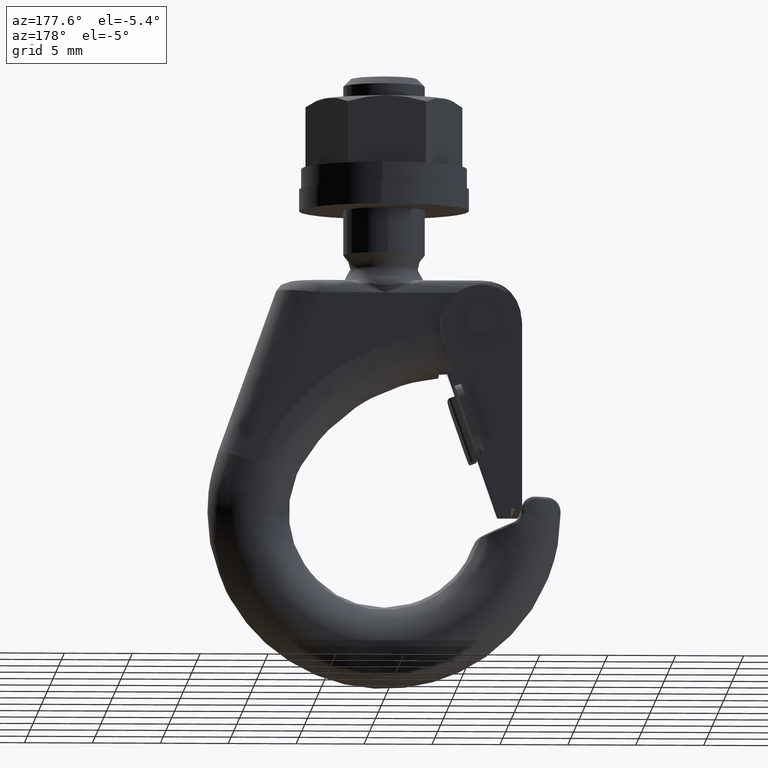
[diagram: clean part render]
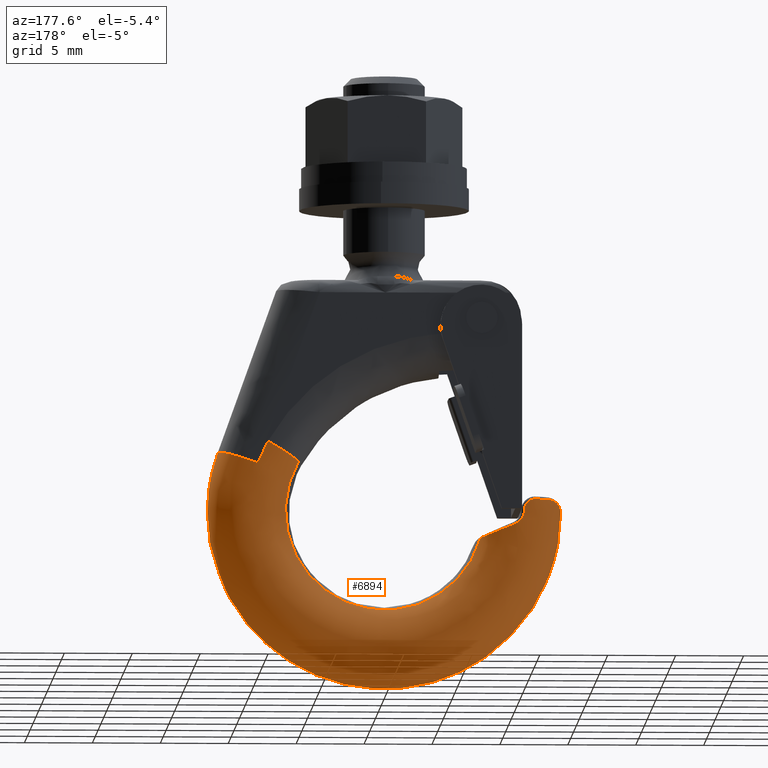
[diagram: same view with one face highlighted and labeled with its STEP entity id]
A machine part, auxiliary view. The second image highlights one B-rep face of the part: STEP entity #6894.
In plain terms, the highlighted face is a freeform B-spline surface patch.
Its self-contained STEP definition (entity closure, byte-faithful):
#6467=CARTESIAN_POINT('',(6.849593996857092,-2.652969036279769,5.196864083277541));
#6468=CARTESIAN_POINT('',(10.920941882533510,-2.652969036279769,-0.169272030726479));
#6469=CARTESIAN_POINT('',(6.685242009063144,-2.652969036279769,-5.406650858165174));
#6470=CARTESIAN_POINT('',(2.449542135592775,-2.652969036279769,-10.644029685603870));
#6471=CARTESIAN_POINT('',(-3.649409436062717,-2.652969036279769,-7.784994861258241));
#6472=CARTESIAN_POINT('',(-9.748361007718208,-2.652969036279769,-4.925960036912616));
#6473=CARTESIAN_POINT('',(-8.432192039813318,-2.652969036279769,1.680021316992659));
#6474=CARTESIAN_POINT('',(6.872168382754908,-2.667183605275754,5.213991524017567));
#6475=CARTESIAN_POINT('',(10.956934316032060,-2.667183605275755,-0.169829904980789));
#6476=CARTESIAN_POINT('',(6.707274735820691,-2.667183605275754,-5.424469698660389));
#6477=CARTESIAN_POINT('',(2.457615155609320,-2.667183605275755,-10.679109492339990));
#6478=CARTESIAN_POINT('',(-3.661436890090885,-2.667183605275754,-7.810652072224497));
#6479=CARTESIAN_POINT('',(-9.780488935791087,-2.667183605275755,-4.942194652109008));
#6480=CARTESIAN_POINT('',(-8.459982235430545,-2.667183605275754,1.685558207141732));
#6481=CARTESIAN_POINT('',(9.031196842495074,-4.026673920723888,6.852070724382733));
#6482=CARTESIAN_POINT('',(14.399273284206981,-4.026673920723888,-0.223185349397520));
#6483=CARTESIAN_POINT('',(8.814498574845405,-4.026673920723888,-7.128674806293537));
#6484=CARTESIAN_POINT('',(3.229723865483828,-4.026673920723888,-14.034164263189554));
#6485=CARTESIAN_POINT('',(-4.811750154982065,-4.026673920723888,-10.264523859676393));
#6486=CARTESIAN_POINT('',(-12.853224175447952,-4.026673920723888,-6.494883456163234));
#6487=CARTESIAN_POINT('',(-11.117854015904669,-4.026673920723888,2.215109862031297));
#6488=CARTESIAN_POINT('',(10.102819090248291,-1.345149648270098,7.665122588879399));
#6489=CARTESIAN_POINT('',(16.107859850522111,-1.345149648270098,-0.249668039339740));
#6490=CARTESIAN_POINT('',(9.860407875719833,-1.345149648270098,-7.974547911780128));
#6491=CARTESIAN_POINT('',(3.612955900917549,-1.345149648270098,-15.699427784220514));
#6492=CARTESIAN_POINT('',(-5.382702001856461,-1.345149648270098,-11.482490018808850));
#6493=CARTESIAN_POINT('',(-14.378359904630468,-1.345149648270098,-7.265552253397195));
#6494=CARTESIAN_POINT('',(-12.437074482305700,-1.345149648270098,2.477949998368586));
#6495=CARTESIAN_POINT('',(11.174441338001509,1.336374624183691,8.478174453376068));
#6496=CARTESIAN_POINT('',(17.816446416837248,1.336374624183691,-0.276150729281961));
#6497=CARTESIAN_POINT('',(10.906317176594262,1.336374624183691,-8.820421017266723));
#6498=CARTESIAN_POINT('',(3.996187936351271,1.336374624183691,-17.364691305251483));
#6499=CARTESIAN_POINT('',(-5.953653848730856,1.336374624183691,-12.700456177941318));
#6500=CARTESIAN_POINT('',(-15.903495633812980,1.336374624183691,-8.036221050631157));
#6501=CARTESIAN_POINT('',(-13.756294948706737,1.336374624183691,2.740790134705876));
#6502=CARTESIAN_POINT('',(9.038187522712443,2.681524272453790,6.857374632169966));
#6503=CARTESIAN_POINT('',(14.410419172913423,2.681524272453790,-0.223358108051112));
#6504=CARTESIAN_POINT('',(8.821321517793926,2.681524272453790,-7.134192821991071));
#6505=CARTESIAN_POINT('',(3.232223862674428,2.681524272453790,-14.045027535931030));
#6506=CARTESIAN_POINT('',(-4.815474734039082,2.681524272453790,-10.272469207910740));
#6507=CARTESIAN_POINT('',(-12.863173330752584,2.681524272453790,-6.499910879890450));
#6508=CARTESIAN_POINT('',(-11.126459892122851,2.681524272453790,2.216824488006333));
#6509=CARTESIAN_POINT('',(6.901933707423376,4.026673920723888,5.236574810963865));
#6510=CARTESIAN_POINT('',(11.004391928989593,4.026673920723888,-0.170565486820264));
#6511=CARTESIAN_POINT('',(6.736325858993590,4.026673920723888,-5.447964626715422));
#6512=CARTESIAN_POINT('',(2.468259788997587,4.026673920723888,-10.725363766610579));
#6513=CARTESIAN_POINT('',(-3.677295619347308,4.026673920723888,-7.844482237880160));
#6514=CARTESIAN_POINT('',(-9.822851027692197,4.026673920723888,-4.963600709149742));
#6515=CARTESIAN_POINT('',(-8.496624835538972,4.026673920723888,1.692858841306790));
#6516=CARTESIAN_POINT('',(5.818946297929721,1.316710562453017,4.414900070297219));
#6517=CARTESIAN_POINT('',(9.277684833062063,1.316710562453017,-0.143801932930747));
#6518=CARTESIAN_POINT('',(5.679324096764248,1.316710562453017,-4.593120557182592));
#6519=CARTESIAN_POINT('',(2.080963360466432,1.316710562453017,-9.042439181434437));
#6520=CARTESIAN_POINT('',(-3.100288504304176,1.316710562453017,-6.613598856823701));
#6521=CARTESIAN_POINT('',(-8.281540369074779,1.316710562453017,-4.184758532212963));
#6522=CARTESIAN_POINT('',(-7.163413287855910,1.316710562453017,1.427231136245900));
#6523=CARTESIAN_POINT('',(5.807680553077648,1.288520247879535,4.406352622839754));
#6524=CARTESIAN_POINT('',(9.259722812999355,1.288520247879535,-0.143523525844191));
#6525=CARTESIAN_POINT('',(5.668328666847817,1.288520247879535,-4.584228066751733));
#6526=CARTESIAN_POINT('',(2.076934520696272,1.288520247879535,-9.024932607659272));
#6527=CARTESIAN_POINT('',(-3.094286204666228,1.288520247879535,-6.600794628453103));
#6528=CARTESIAN_POINT('',(-8.265506930028721,1.288520247879535,-4.176656649246932));
#6529=CARTESIAN_POINT('',(-7.149544593724871,1.288520247879535,1.424467951813077));
#6537=(BOUNDED_SURFACE()B_SPLINE_SURFACE(2,2,((#6467,#6474,#6481,#6488,#6495,#6502,#6509,#6516,#6523),(#6468,#6475,#6482,#6489,#6496,#6503,#6510,#6517,#6524),(#6469,#6476,#6483,#6490,#6497,#6504,#6511,#6518,#6525),(#6470,#6477,#6484,#6491,#6498,#6505,#6512,#6519,#6526),(#6471,#6478,#6485,#6492,#6499,#6506,#6513,#6520,#6527),(#6472,#6479,#6486,#6493,#6500,#6507,#6514,#6521,#6528),(#6473,#6480,#6487,#6494,#6501,#6508,#6515,#6522,#6529)),.UNSPECIFIED.,.F.,.F.,.U.)B_SPLINE_SURFACE_WITH_KNOTS((3,2,2,3),(3,1,2,2,1,3),(0.0,17.732836829062560,35.465673658125112,53.198510487187669),(0.0,0.075273373099655,5.045836121576802,10.016398870053949,14.986961618531090,15.061841733623160),.UNSPECIFIED.)GEOMETRIC_REPRESENTATION_ITEM()RATIONAL_B_SPLINE_SURFACE(((1.008871052093592,1.004435526046796,0.707106781186548,1.0,0.707106781186548,1.0,0.707106781186548,1.004412353096469,1.008824706192938),(0.794176650102816,0.790685033200955,0.556629802770494,0.787193416299094,0.556629802770494,0.787193416299094,0.556629802770494,0.790666791607021,0.794140166914949),(1.008871052093592,1.004435526046796,0.707106781186548,1.0,0.707106781186548,1.0,0.707106781186548,1.004412353096469,1.008824706192938),(0.794176650102816,0.790685033200955,0.556629802770494,0.787193416299094,0.556629802770494,0.787193416299094,0.556629802770494,0.790666791607021,0.794140166914949),(1.008871052093592,1.004435526046796,0.707106781186548,1.0,0.707106781186548,1.0,0.707106781186548,1.004412353096469,1.008824706192938),(0.794176650102816,0.790685033200955,0.556629802770494,0.787193416299094,0.556629802770494,0.787193416299094,0.556629802770494,0.790666791607021,0.794140166914949),(1.008871052093592,1.004435526046796,0.707106781186548,1.0,0.707106781186548,1.0,0.707106781186548,1.004412353096469,1.008824706192938)))REPRESENTATION_ITEM('')SURFACE());
#6538=CARTESIAN_POINT('',(7.495315507790335,-2.681525537343441,4.327432156118015));
#6539=VERTEX_POINT('',#6538);
#6540=CARTESIAN_POINT('',(8.660244136243270,-3.0,5.000004525769190));
#6541=VERTEX_POINT('',#6540);
#6542=CARTESIAN_POINT('',(7.495315507790335,-2.681525537343442,4.327432156118014));
#6543=CARTESIAN_POINT('',(8.045130260254588,-2.999999367549276,4.644868093310167));
#6544=CARTESIAN_POINT('',(8.660244136243270,-3.0,5.000004525769190));
#6552=(BOUNDED_CURVE()B_SPLINE_CURVE(2,(#6542,#6543,#6544),.UNSPECIFIED.,.F.,.U.)B_SPLINE_CURVE_WITH_KNOTS((3,3),(0.847538706599286,1.0),.UNSPECIFIED.)CURVE()GEOMETRIC_REPRESENTATION_ITEM()RATIONAL_B_SPLINE_CURVE((0.875845608959248,0.910690242062805,1.0))REPRESENTATION_ITEM(''));
#6553=EDGE_CURVE('',#6539,#6541,#6552,.T.);
#6554=ORIENTED_EDGE('',*,*,#6553,.F.);
#6555=CARTESIAN_POINT('',(-8.535929584154349,-2.681524272868841,-1.429804442654030));
#6556=VERTEX_POINT('',#6555);
#6557=CARTESIAN_POINT('',(7.495315507790335,-2.681525537343442,4.327432156118015));
#6558=CARTESIAN_POINT('',(10.467479273450007,-2.681525615830475,-0.820494998295360));
#6559=CARTESIAN_POINT('',(6.729502496311275,-2.681525238710203,-5.442446853346619));
#6560=CARTESIAN_POINT('',(2.465759559034711,-2.681524808545973,-10.714500628247775));
#6561=CARTESIAN_POINT('',(-3.673571118023959,-2.681524451830530,-7.836536934506457));
#6562=CARTESIAN_POINT('',(-7.785663449953562,-2.681524212904348,-5.908891551137844));
#6563=CARTESIAN_POINT('',(-8.535929584154349,-2.681524272868841,-1.429804442654030));
#6571=(BOUNDED_CURVE()B_SPLINE_CURVE(2,(#6557,#6558,#6559,#6560,#6561,#6562,#6563),.UNSPECIFIED.,.F.,.U.)B_SPLINE_CURVE_WITH_KNOTS((3,2,2,3),(-5.800629108418222,-4.0,-2.0,-0.559162846025186),.UNSPECIFIED.)CURVE()GEOMETRIC_REPRESENTATION_ITEM()RATIONAL_B_SPLINE_CURVE((0.961801959776463,0.808407135462555,1.0,0.787193416299094,1.0,0.846690183796642,0.914274846848132))REPRESENTATION_ITEM(''));
#6572=EDGE_CURVE('',#6539,#6556,#6571,.T.);
#6573=ORIENTED_EDGE('',*,*,#6572,.T.);
#6574=CARTESIAN_POINT('',(-9.413391820064151,-2.954328152489260,-1.109201145400310));
#6575=VERTEX_POINT('',#6574);
#6576=CARTESIAN_POINT('',(-8.535929584154349,-2.681524272868841,-1.429804442654030));
#6577=CARTESIAN_POINT('',(-8.536685869485746,-2.681875710787787,-1.429530172451834));
#6578=CARTESIAN_POINT('',(-8.537442297451714,-2.682226884315742,-1.429255844976883));
#6579=CARTESIAN_POINT('',(-8.593929363391805,-2.708426488866834,-1.408769728590537));
#6580=CARTESIAN_POINT('',(-8.650534779241680,-2.732881023040913,-1.388210074936886));
#6581=CARTESIAN_POINT('',(-8.821777595076876,-2.801508460330402,-1.325918766848482));
#6582=CARTESIAN_POINT('',(-8.937940766296036,-2.841026417474014,-1.283539028027711));
#6583=CARTESIAN_POINT('',(-9.173771879311667,-2.907401724975953,-1.197248854351013));
#6584=CARTESIAN_POINT('',(-9.292945750442721,-2.934129124893579,-1.153519416670052));
#6585=CARTESIAN_POINT('',(-9.413391820064151,-2.954328152489265,-1.109201145400308));
#6586=B_SPLINE_CURVE_WITH_KNOTS('',3,(#6576,#6577,#6578,#6579,#6580,#6581,#6582,#6583,#6584,#6585),.UNSPECIFIED.,.F.,.U.,(4,2,2,2,4),(0.686651529876612,0.687500000000003,0.750000000000002,0.875000000000001,1.0),.UNSPECIFIED.);
#6587=EDGE_CURVE('',#6556,#6575,#6586,.T.);
#6588=ORIENTED_EDGE('',*,*,#6587,.T.);
#6589=CARTESIAN_POINT('',(-10.214285714285699,-2.992337152236200,1.435594E-011));
#6590=VERTEX_POINT('',#6589);
#6591=CARTESIAN_POINT('',(-9.413391820064151,-2.954328152489260,-1.109201145400310));
#6592=CARTESIAN_POINT('',(-9.527233131480035,-2.973419551767607,-1.067313189336746));
#6593=CARTESIAN_POINT('',(-9.633599559079405,-2.984919758228950,-1.010573047302918));
#6594=CARTESIAN_POINT('',(-9.756207775479471,-2.993376653458295,-0.920000910764127));
#6595=CARTESIAN_POINT('',(-9.780270037945876,-2.994769090246301,-0.900818458247310));
#6596=CARTESIAN_POINT('',(-9.826526574231940,-2.996998281556282,-0.861031502871717));
#6597=CARTESIAN_POINT('',(-9.848809073750005,-2.997842625105205,-0.840370452148152));
#6598=CARTESIAN_POINT('',(-9.913135237417944,-2.999721637229134,-0.776101929243820));
#6599=CARTESIAN_POINT('',(-9.952671809323734,-3.000106179172014,-0.730221999761630));
#6600=CARTESIAN_POINT('',(-10.024805565338511,-2.999846300486545,-0.632186702135287));
#6601=CARTESIAN_POINT('',(-10.057480457454250,-2.999191867342967,-0.579716543727157));
#6602=CARTESIAN_POINT('',(-10.113388414498569,-2.997531525949724,-0.471906251030320));
#6603=CARTESIAN_POINT('',(-10.136958578721460,-2.996526614049320,-0.416189731158944));
#6604=CARTESIAN_POINT('',(-10.165664469843570,-2.995136295019219,-0.329861700271591));
#6605=CARTESIAN_POINT('',(-10.174120213041620,-2.994691027409752,-0.300624906120277));
#6606=CARTESIAN_POINT('',(-10.188732880153481,-2.993886043243975,-0.241198781806613));
#6607=CARTESIAN_POINT('',(-10.194867870450871,-2.993527511533374,-0.211035630491288));
#6608=CARTESIAN_POINT('',(-10.209462400803719,-2.992653610249487,-0.120831484444494));
#6609=CARTESIAN_POINT('',(-10.214285714286479,-2.992337152236154,-0.060507940285567));
#6610=CARTESIAN_POINT('',(-10.214285714285710,-2.992337152236202,1.435554E-011));
#6611=B_SPLINE_CURVE_WITH_KNOTS('',3,(#6591,#6592,#6593,#6594,#6595,#6596,#6597,#6598,#6599,#6600,#6601,#6602,#6603,#6604,#6605,#6606,#6607,#6608,#6609,#6610),.UNSPECIFIED.,.F.,.U.,(4,2,2,2,2,2,2,2,2,4),(0.0,0.249999999999999,0.312500000000001,0.375000000000002,0.500000000000001,0.625000000000001,0.750000000000001,0.812500000000001,0.875000000000001,1.0),.UNSPECIFIED.);
#6612=EDGE_CURVE('',#6575,#6590,#6611,.T.);
#6613=ORIENTED_EDGE('',*,*,#6612,.T.);
#6614=CARTESIAN_POINT('',(-11.073310130743719,-2.790048317429660,0.805331645872271));
#6615=VERTEX_POINT('',#6614);
#6616=CARTESIAN_POINT('',(-10.214285714285699,-2.992337152236200,1.435594E-011));
#6617=CARTESIAN_POINT('',(-10.214285714286790,-2.992337152236118,0.055995690570326));
#6618=CARTESIAN_POINT('',(-10.220532820791229,-2.991878663978593,0.111193638527117));
#6619=CARTESIAN_POINT('',(-10.239067385492451,-2.990323867768604,0.192818340761532));
#6620=CARTESIAN_POINT('',(-10.246786070658359,-2.989655328246523,0.219745782903091));
#6621=CARTESIAN_POINT('',(-10.264898255181681,-2.987978973645975,0.272046200959624));
#6622=CARTESIAN_POINT('',(-10.285746479003830,-2.985958195348988,0.323087803030947));
#6623=CARTESIAN_POINT('',(-10.311890607764800,-2.983078195543095,0.371683515643386));
#6624=CARTESIAN_POINT('',(-10.340675933174341,-2.979654267268089,0.419053821722748));
#6625=CARTESIAN_POINT('',(-10.356473768213011,-2.977657503583572,0.442214890957224));
#6626=CARTESIAN_POINT('',(-10.406697509266669,-2.970807980280758,0.508302029200274));
#6627=CARTESIAN_POINT('',(-10.444167998264239,-2.965078586333918,0.548355108648886));
#6628=CARTESIAN_POINT('',(-10.505896317573560,-2.954112606692153,0.602770198603376));
#6629=CARTESIAN_POINT('',(-10.527499004399219,-2.950040169109911,0.620027118765109));
#6630=CARTESIAN_POINT('',(-10.572098837369371,-2.941065870032612,0.652284182362752));
#6631=CARTESIAN_POINT('',(-10.594940041588391,-2.936197437118254,0.667188070812071));
#6632=CARTESIAN_POINT('',(-10.664957070197881,-2.920361080144671,0.708436652417068));
#6633=CARTESIAN_POINT('',(-10.713613501571251,-2.908166073838651,0.731344866588213));
#6634=CARTESIAN_POINT('',(-10.789326878768399,-2.887017307057910,0.759093913569151));
#6635=CARTESIAN_POINT('',(-10.815072463564380,-2.879471592890780,0.767234393577761));
#6636=CARTESIAN_POINT('',(-10.866440236120040,-2.863680254853770,0.781033920084804));
#6637=CARTESIAN_POINT('',(-10.892185062149890,-2.855402157326209,0.786743633988860));
#6638=CARTESIAN_POINT('',(-10.969570877789360,-2.829406620056050,0.800468382679329));
#6639=CARTESIAN_POINT('',(-11.021359882189371,-2.810530173080977,0.805104396564905));
#6640=CARTESIAN_POINT('',(-11.073310130743719,-2.790048317429660,0.805331645872270));
#6641=B_SPLINE_CURVE_WITH_KNOTS('',3,(#6616,#6617,#6618,#6619,#6620,#6621,#6622,#6623,#6624,#6625,#6626,#6627,#6628,#6629,#6630,#6631,#6632,#6633,#6634,#6635,#6636,#6637,#6638,#6639,#6640),.UNSPECIFIED.,.F.,.U.,(4,2,2,1,2,2,2,2,2,2,2,2,4),(0.0,0.124999999999999,0.187499999999998,0.249999999999998,0.312499999999997,0.374999999999996,0.499999999999995,0.562499999999994,0.624999999999994,0.749999999999996,0.812499999999997,0.874999999999998,1.0),.UNSPECIFIED.);
#6642=EDGE_CURVE('',#6590,#6615,#6641,.T.);
#6643=ORIENTED_EDGE('',*,*,#6642,.T.);
#6644=CARTESIAN_POINT('',(-12.144439217828459,-2.070032687341575,0.809629278362424));
#6645=VERTEX_POINT('',#6644);
#6646=CARTESIAN_POINT('',(-11.073310130743719,-2.790048317429660,0.805331645872271));
#6647=CARTESIAN_POINT('',(-11.276532984696720,-2.709925868056593,0.806220616648864));
#6648=CARTESIAN_POINT('',(-11.467416179791400,-2.609408090711954,0.807010609171878));
#6649=CARTESIAN_POINT('',(-11.735922447509161,-2.429180656381460,0.808079435944698));
#6650=CARTESIAN_POINT('',(-11.822428636658850,-2.364153168668444,0.808416117486712));
#6651=CARTESIAN_POINT('',(-11.989244261618669,-2.223856119801650,0.809053296621334));
#6652=CARTESIAN_POINT('',(-12.068993907576891,-2.149016454163609,0.809351635741520));
#6653=CARTESIAN_POINT('',(-12.144439217828459,-2.070032687341575,0.809629278362424));
#6654=B_SPLINE_CURVE_WITH_KNOTS('',3,(#6646,#6647,#6648,#6649,#6650,#6651,#6652,#6653),.UNSPECIFIED.,.F.,.U.,(4,2,2,4),(0.0,0.500000000000001,0.750000000000001,1.0),.UNSPECIFIED.);
#6655=EDGE_CURVE('',#6615,#6645,#6654,.T.);
#6656=ORIENTED_EDGE('',*,*,#6655,.T.);
#6657=CARTESIAN_POINT('',(-12.999999999999840,0.0,0.000002042035243));
#6658=VERTEX_POINT('',#6657);
#6659=CARTESIAN_POINT('',(-12.144439217828459,-2.070032687341575,0.809629278362424));
#6660=CARTESIAN_POINT('',(-12.215992185905300,-1.995123785526031,0.809892654484427));
#6661=CARTESIAN_POINT('',(-12.282889032722510,-1.917954790863404,0.801811687824710));
#6662=CARTESIAN_POINT('',(-12.408223571297020,-1.758984277503432,0.773588850975185));
#6663=CARTESIAN_POINT('',(-12.466667827578689,-1.677159010336954,0.753379945241711));
#6664=CARTESIAN_POINT('',(-12.575275602357010,-1.508769116149374,0.703314547883263));
#6665=CARTESIAN_POINT('',(-12.624368840855720,-1.423882627201938,0.673961041270584));
#6666=CARTESIAN_POINT('',(-12.713257304018910,-1.252357049817679,0.608833867649261));
#6667=CARTESIAN_POINT('',(-12.753042721499140,-1.165721071459241,0.573041094310406));
#6668=CARTESIAN_POINT('',(-12.823823889812081,-0.990383419197761,0.496403566998519));
#6669=CARTESIAN_POINT('',(-12.854862618556350,-0.901523750944523,0.455473645981341));
#6670=CARTESIAN_POINT('',(-12.908070274629940,-0.722081598474443,0.369857540736950));
#6671=CARTESIAN_POINT('',(-12.929994889793839,-0.632386632429020,0.325601828198685));
#6672=CARTESIAN_POINT('',(-12.965008737781771,-0.452660461324798,0.235116766466692));
#6673=CARTESIAN_POINT('',(-12.978095203131440,-0.362631094298357,0.188882968921434));
#6674=CARTESIAN_POINT('',(-12.991217925190121,-0.227071410609043,0.118606962085900));
#6675=CARTESIAN_POINT('',(-12.996148759167481,-0.159162798555675,0.083236230096694));
#6676=CARTESIAN_POINT('',(-12.998623755962059,-0.091010157787320,0.047613674043801));
#6677=CARTESIAN_POINT('',(-12.999724613061160,-0.045515218546229,0.023820101136783));
#6678=CARTESIAN_POINT('',(-12.999999993196541,-0.022636431437155,0.011847613348414));
#6679=CARTESIAN_POINT('',(-12.999999999999840,0.0,0.000002042035243));
#6680=B_SPLINE_CURVE_WITH_KNOTS('',3,(#6659,#6660,#6661,#6662,#6663,#6664,#6665,#6666,#6667,#6668,#6669,#6670,#6671,#6672,#6673,#6674,#6675,#6676,#6677,#6678,#6679),.UNSPECIFIED.,.F.,.U.,(4,2,2,2,2,2,2,2,1,2,4),(0.0,0.125000000000000,0.250000000000000,0.375000000000000,0.500000000000000,0.625000000000000,0.750000000000000,0.875000000000000,0.937500000000000,0.968750000000000,0.999999613977318),.UNSPECIFIED.);
#6681=EDGE_CURVE('',#6645,#6658,#6680,.T.);
#6682=ORIENTED_EDGE('',*,*,#6681,.T.);
#6683=CARTESIAN_POINT('',(-12.144439217828440,2.070032687341575,0.809629278362423));
#6684=VERTEX_POINT('',#6683);
#6685=CARTESIAN_POINT('',(-12.999999999999840,0.0,0.000002042035243));
#6686=CARTESIAN_POINT('',(-12.999999993196541,0.022636431437148,0.011847613348426));
#6687=CARTESIAN_POINT('',(-12.999724613061160,0.045515218546231,0.023820101136780));
#6688=CARTESIAN_POINT('',(-12.998623755962059,0.091010157787321,0.047613674043800));
#6689=CARTESIAN_POINT('',(-12.996148759167481,0.159162798555674,0.083236230096697));
#6690=CARTESIAN_POINT('',(-12.991217925190121,0.227071410609045,0.118606962085899));
#6691=CARTESIAN_POINT('',(-12.978095203131440,0.362631094298360,0.188882968921434));
#6692=CARTESIAN_POINT('',(-12.965008737781771,0.452660461324801,0.235116766466693));
#6693=CARTESIAN_POINT('',(-12.929994889793839,0.632386632429024,0.325601828198687));
#6694=CARTESIAN_POINT('',(-12.908070274629940,0.722081598474446,0.369857540736954));
#6695=CARTESIAN_POINT('',(-12.854862618556350,0.901523750944528,0.455473645981345));
#6696=CARTESIAN_POINT('',(-12.823823889812081,0.990383419197767,0.496403566998521));
#6697=CARTESIAN_POINT('',(-12.753042721499140,1.165721071459247,0.573041094310408));
#6698=CARTESIAN_POINT('',(-12.713257304018899,1.252357049817686,0.608833867649263));
#6699=CARTESIAN_POINT('',(-12.624368840855720,1.423882627201946,0.673961041270586));
#6700=CARTESIAN_POINT('',(-12.575275602357010,1.508769116149382,0.703314547883266));
#6701=CARTESIAN_POINT('',(-12.466667827578680,1.677159010336963,0.753379945241713));
#6702=CARTESIAN_POINT('',(-12.408223571297020,1.758984277503442,0.773588850975186));
#6703=CARTESIAN_POINT('',(-12.282889032722510,1.917954790863415,0.801811687824711));
#6704=CARTESIAN_POINT('',(-12.215992185905280,1.995123785526031,0.809892654484428));
#6705=CARTESIAN_POINT('',(-12.144439217828440,2.070032687341575,0.809629278362423));
#6706=B_SPLINE_CURVE_WITH_KNOTS('',3,(#6685,#6686,#6687,#6688,#6689,#6690,#6691,#6692,#6693,#6694,#6695,#6696,#6697,#6698,#6699,#6700,#6701,#6702,#6703,#6704,#6705),.UNSPECIFIED.,.F.,.U.,(4,2,1,2,2,2,2,2,2,2,4),(0.0,0.031249613977318,0.062499613977318,0.124999613977318,0.249999613977318,0.374999613977318,0.499999613977318,0.624999613977318,0.749999613977318,0.874999613977318,0.999999613977318),.UNSPECIFIED.);
#6707=EDGE_CURVE('',#6658,#6684,#6706,.T.);
#6708=ORIENTED_EDGE('',*,*,#6707,.T.);
#6709=CARTESIAN_POINT('',(-11.073310130743719,2.790048317429665,0.805331645872271));
#6710=VERTEX_POINT('',#6709);
#6711=CARTESIAN_POINT('',(-12.144439217828440,2.070032687341575,0.809629278362424));
#6712=CARTESIAN_POINT('',(-11.993546600204271,2.228002311773539,0.809073985771109));
#6713=CARTESIAN_POINT('',(-11.828387023843730,2.366789535636370,0.808447144859288));
#6714=CARTESIAN_POINT('',(-11.560106241098500,2.547351624098287,0.807379749917413));
#6715=CARTESIAN_POINT('',(-11.467225372388519,2.602895026823040,0.807002582701395));
#6716=CARTESIAN_POINT('',(-11.274329761281569,2.704390033571974,0.806199543443331));
#6717=CARTESIAN_POINT('',(-11.174922975876180,2.749986533622308,0.805776137464098));
#6718=CARTESIAN_POINT('',(-11.073310130743719,2.790048317429665,0.805331645872271));
#6719=B_SPLINE_CURVE_WITH_KNOTS('',3,(#6711,#6712,#6713,#6714,#6715,#6716,#6717,#6718),.UNSPECIFIED.,.F.,.U.,(4,2,2,4),(0.0,0.499999999999999,0.749999999999999,1.0),.UNSPECIFIED.);
#6720=EDGE_CURVE('',#6684,#6710,#6719,.T.);
#6721=ORIENTED_EDGE('',*,*,#6720,.T.);
#6722=CARTESIAN_POINT('',(-10.214285714285699,2.992337152236200,-1.952286E-013));
#6723=VERTEX_POINT('',#6722);
#6724=CARTESIAN_POINT('',(-11.073310130743719,2.790048317429665,0.805331645872271));
#6725=CARTESIAN_POINT('',(-11.021364020111330,2.810528541667801,0.805104414665684));
#6726=CARTESIAN_POINT('',(-10.969552648237171,2.829414026634977,0.800469122908105));
#6727=CARTESIAN_POINT('',(-10.892093625922040,2.855432230002370,0.786725426795942));
#6728=CARTESIAN_POINT('',(-10.866317757054031,2.863719418081225,0.781006041309828));
#6729=CARTESIAN_POINT('',(-10.814874286677361,2.879530995378105,0.767176099373780));
#6730=CARTESIAN_POINT('',(-10.789132001130049,2.887073234158846,0.759027962979450));
#6731=CARTESIAN_POINT('',(-10.713515518906460,2.908190443372140,0.731297958089897));
#6732=CARTESIAN_POINT('',(-10.664814390946100,2.920398038387679,0.708375468369176));
#6733=CARTESIAN_POINT('',(-10.571192235021980,2.941563969001912,0.653174705665384));
#6734=CARTESIAN_POINT('',(-10.526112703591140,2.950524827889408,0.620619250017135));
#6735=CARTESIAN_POINT('',(-10.444041435241131,2.965097404744874,0.548215584156331));
#6736=CARTESIAN_POINT('',(-10.406531678260720,2.970834173448979,0.508137566864797));
#6737=CARTESIAN_POINT('',(-10.356123680369690,2.977703436932969,0.441727005085090));
#6738=CARTESIAN_POINT('',(-10.340429942386370,2.979684468609078,0.418671742930974));
#6739=CARTESIAN_POINT('',(-10.311781655920511,2.983090201829915,0.371481203042998));
#6740=CARTESIAN_POINT('',(-10.285705380287080,2.985962484995449,0.322995441912171));
#6741=CARTESIAN_POINT('',(-10.264838206843910,2.987984795433154,0.271899000303023));
#6742=CARTESIAN_POINT('',(-10.246691001854680,2.989663860899231,0.219444845337649));
#6743=CARTESIAN_POINT('',(-10.238966044895299,2.990332527153904,0.192423294472409));
#6744=CARTESIAN_POINT('',(-10.220530146713550,2.991878569044072,0.111078503039037));
#6745=CARTESIAN_POINT('',(-10.214285714285690,2.992337152236201,0.055984643804788));
#6746=CARTESIAN_POINT('',(-10.214285714285699,2.992337152236200,-1.946529E-013));
#6747=B_SPLINE_CURVE_WITH_KNOTS('',3,(#6724,#6725,#6726,#6727,#6728,#6729,#6730,#6731,#6732,#6733,#6734,#6735,#6736,#6737,#6738,#6739,#6740,#6741,#6742,#6743,#6744,#6745,#6746),.UNSPECIFIED.,.F.,.U.,(4,2,2,2,2,2,2,2,1,2,2,4),(0.0,0.124999999999997,0.187499999999996,0.249999999999995,0.374999999999996,0.499999999999997,0.624999999999998,0.687499999999998,0.749999999999999,0.812499999999999,0.875000000000000,1.0),.UNSPECIFIED.);
#6748=EDGE_CURVE('',#6710,#6723,#6747,.T.);
#6749=ORIENTED_EDGE('',*,*,#6748,.T.);
#6750=CARTESIAN_POINT('',(-9.413391820064161,2.954328152489265,-1.109201145400304));
#6751=VERTEX_POINT('',#6750);
#6752=CARTESIAN_POINT('',(-10.214285714285710,2.992337152236202,-1.953553E-013));
#6753=CARTESIAN_POINT('',(-10.214285714285710,2.992337152236203,-0.060488578021596));
#6754=CARTESIAN_POINT('',(-10.209466141000510,2.992653555450332,-0.120947841466407));
#6755=CARTESIAN_POINT('',(-10.194766563261510,2.993533492233522,-0.211591330161545));
#6756=CARTESIAN_POINT('',(-10.188606368615600,2.993893217927231,-0.241763637336558));
#6757=CARTESIAN_POINT('',(-10.174030074627829,2.994695784486878,-0.300940357882718));
#6758=CARTESIAN_POINT('',(-10.165593147124261,2.995139900063808,-0.330092066127044));
#6759=CARTESIAN_POINT('',(-10.136921077544841,2.996528127618291,-0.416270609289121));
#6760=CARTESIAN_POINT('',(-10.113343683227811,2.997533931160968,-0.472027999638143));
#6761=CARTESIAN_POINT('',(-10.071263646875989,2.998781994859303,-0.553119802526084));
#6762=CARTESIAN_POINT('',(-10.056042439599331,2.999154323280267,-0.579834628097368));
#6763=CARTESIAN_POINT('',(-10.023647928726369,2.999720084475753,-0.631827745696318));
#6764=CARTESIAN_POINT('',(-10.006535178804800,2.999913087837594,-0.657031847459889));
#6765=CARTESIAN_POINT('',(-9.952553417192476,3.000104661711558,-0.730354085022335));
#6766=CARTESIAN_POINT('',(-9.913054648439999,2.999720694344242,-0.776194110053697));
#6767=CARTESIAN_POINT('',(-9.848673785556580,2.997837964764590,-0.840499763198819));
#6768=CARTESIAN_POINT('',(-9.826354493700009,2.996991523017956,-0.861189498063197));
#6769=CARTESIAN_POINT('',(-9.779978174835511,2.994753475023036,-0.901059417742568));
#6770=CARTESIAN_POINT('',(-9.755929655072794,2.993359139818047,-0.920215146375210));
#6771=CARTESIAN_POINT('',(-9.633542647276512,2.984909113864918,-1.010579738716015));
#6772=CARTESIAN_POINT('',(-9.527272828366717,2.973426209009199,-1.067298582851416));
#6773=CARTESIAN_POINT('',(-9.413391820064161,2.954328152489265,-1.109201145400304));
#6774=B_SPLINE_CURVE_WITH_KNOTS('',3,(#6752,#6753,#6754,#6755,#6756,#6757,#6758,#6759,#6760,#6761,#6762,#6763,#6764,#6765,#6766,#6767,#6768,#6769,#6770,#6771,#6772,#6773),.UNSPECIFIED.,.F.,.U.,(4,2,2,2,2,2,2,2,2,2,4),(0.0,0.124999999999999,0.187499999999999,0.249999999999999,0.374999999999999,0.437499999999998,0.499999999999997,0.624999999999998,0.687499999999998,0.749999999999998,1.0),.UNSPECIFIED.);
#6775=EDGE_CURVE('',#6723,#6751,#6774,.T.);
#6776=ORIENTED_EDGE('',*,*,#6775,.T.);
#6777=CARTESIAN_POINT('',(-7.051002310439841,1.345149667779153,-1.960472601983538));
#6778=VERTEX_POINT('',#6777);
#6779=CARTESIAN_POINT('',(-9.413391820064161,2.954328152489265,-1.109201145400304));
#6780=CARTESIAN_POINT('',(-9.171325622263042,2.913733205516436,-1.198269684150501));
#6781=CARTESIAN_POINT('',(-8.937961699137993,2.847651797398021,-1.283648257661689));
#6782=CARTESIAN_POINT('',(-8.600095093062425,2.712869089025278,-1.406561580246316));
#6783=CARTESIAN_POINT('',(-8.489524454551590,2.661935777586137,-1.446665699152883));
#6784=CARTESIAN_POINT('',(-8.326834876312937,2.576280311094275,-1.505498661870409));
#6785=CARTESIAN_POINT('',(-8.273134150875860,2.546181893139303,-1.524888625908312));
#6786=CARTESIAN_POINT('',(-8.166824804620557,2.482796486103736,-1.563216186156830));
#6787=CARTESIAN_POINT('',(-8.114080201269752,2.449417283577060,-1.582202637609652));
#6788=CARTESIAN_POINT('',(-7.854802358446390,2.275284055041273,-1.675393092764169));
#6789=CARTESIAN_POINT('',(-7.664755304790573,2.115630302134304,-1.743240693145210));
#6790=CARTESIAN_POINT('',(-7.407108093537865,1.844155220119594,-1.834755916807099));
#6791=CARTESIAN_POINT('',(-7.325847339546053,1.748271881540456,-1.863533525498761));
#6792=CARTESIAN_POINT('',(-7.211663364196318,1.595475295076946,-1.903872720413976));
#6793=CARTESIAN_POINT('',(-7.174803149184121,1.542898520701838,-1.916877304664238));
#6794=CARTESIAN_POINT('',(-7.108799607212139,1.442078118179479,-1.940136802487906));
#6795=CARTESIAN_POINT('',(-7.079239622966046,1.394080705372174,-1.950542147253747));
#6796=CARTESIAN_POINT('',(-7.051002310439841,1.345149667779153,-1.960472601983538));
#6797=B_SPLINE_CURVE_WITH_KNOTS('',3,(#6779,#6780,#6781,#6782,#6783,#6784,#6785,#6786,#6787,#6788,#6789,#6790,#6791,#6792,#6793,#6794,#6795,#6796),.UNSPECIFIED.,.F.,.U.,(4,2,2,2,2,2,2,2,4),(0.0,0.250000000000003,0.375000000000005,0.437500000000005,0.500000000000005,0.750000000000002,0.875000000000001,0.937500000000001,0.992293075718608),.UNSPECIFIED.);
#6798=EDGE_CURVE('',#6751,#6778,#6797,.T.);
#6799=ORIENTED_EDGE('',*,*,#6798,.T.);
#6800=CARTESIAN_POINT('',(6.337979720513153,1.345150913209910,3.659243518745418));
#6801=VERTEX_POINT('',#6800);
#6802=CARTESIAN_POINT('',(6.337979720513153,1.345150913209910,3.659243518745418));
#6803=CARTESIAN_POINT('',(8.851219588716587,1.345150967474884,-0.693804878262064));
#6804=CARTESIAN_POINT('',(5.690414954834325,1.345150587763935,-4.602092449808567));
#6805=CARTESIAN_POINT('',(2.085026922738583,1.345150154644693,-9.060100732065209));
#6806=CARTESIAN_POINT('',(-3.106344015133831,1.345149824860044,-6.626516228614995));
#6807=CARTESIAN_POINT('',(-6.150407708931998,1.345149631484250,-5.199535509764908));
#6808=CARTESIAN_POINT('',(-7.051002310439841,1.345149667779153,-1.960472601983538));
#6816=(BOUNDED_CURVE()B_SPLINE_CURVE(2,(#6802,#6803,#6804,#6805,#6806,#6807,#6808),.UNSPECIFIED.,.F.,.U.)B_SPLINE_CURVE_WITH_KNOTS((3,2,2,3),(-5.800629291742063,-4.0,-2.0,-0.714068359053136),.UNSPECIFIED.)CURVE()GEOMETRIC_REPRESENTATION_ITEM()RATIONAL_B_SPLINE_CURVE((0.961801991011026,0.808407115956295,1.0,0.787193416299094,1.0,0.863172640308599,0.902295911791588))REPRESENTATION_ITEM(''));
#6817=EDGE_CURVE('',#6801,#6778,#6816,.T.);
#6818=ORIENTED_EDGE('',*,*,#6817,.F.);
#6819=CARTESIAN_POINT('',(8.660244136243270,3.0,5.000004525769190));
#6820=VERTEX_POINT('',#6819);
#6821=CARTESIAN_POINT('',(8.660244136243270,3.0,5.000004525769190));
#6822=CARTESIAN_POINT('',(7.056895215772157,2.999999367547679,4.074309889682475));
#6823=CARTESIAN_POINT('',(6.337979720513153,1.345150913209910,3.659243518745417));
#6831=(BOUNDED_CURVE()B_SPLINE_CURVE(2,(#6821,#6822,#6823),.UNSPECIFIED.,.F.,.U.)B_SPLINE_CURVE_WITH_KNOTS((3,3),(0.0,0.347537832089069),.UNSPECIFIED.)CURVE()GEOMETRIC_REPRESENTATION_ITEM()RATIONAL_B_SPLINE_CURVE((1.0,0.796417051399967,0.875845209226957))REPRESENTATION_ITEM(''));
#6832=EDGE_CURVE('',#6820,#6801,#6831,.T.);
#6833=ORIENTED_EDGE('',*,*,#6832,.F.);
#6834=CARTESIAN_POINT('',(9.410401189477899,3.0,3.382955535689185));
#6835=VERTEX_POINT('',#6834);
#6836=CARTESIAN_POINT('',(9.410401189477899,3.0,3.382955535689185));
#6837=CARTESIAN_POINT('',(9.107673606407005,3.0,4.225043543196093));
#6838=CARTESIAN_POINT('',(8.660244136243270,3.0,5.000004525769190));
#6846=(BOUNDED_CURVE()B_SPLINE_CURVE(2,(#6836,#6837,#6838),.UNSPECIFIED.,.F.,.U.)CURVE()GEOMETRIC_REPRESENTATION_ITEM()QUASI_UNIFORM_CURVE()RATIONAL_B_SPLINE_CURVE((1.0,0.996020104484693,1.0))REPRESENTATION_ITEM(''));
#6847=EDGE_CURVE('',#6835,#6820,#6846,.T.);
#6848=ORIENTED_EDGE('',*,*,#6847,.F.);
#6849=CARTESIAN_POINT('',(12.233521000000000,0.0,4.397842000000000));
#6850=VERTEX_POINT('',#6849);
#6851=CARTESIAN_POINT('',(9.410401189477899,3.0,3.382955535689185));
#6852=CARTESIAN_POINT('',(12.233520999999845,3.0,4.397841999998640));
#6853=CARTESIAN_POINT('',(12.233521000000000,0.0,4.397842000000000));
#6861=(BOUNDED_CURVE()B_SPLINE_CURVE(2,(#6851,#6852,#6853),.UNSPECIFIED.,.F.,.U.)CURVE()GEOMETRIC_REPRESENTATION_ITEM()QUASI_UNIFORM_CURVE()RATIONAL_B_SPLINE_CURVE((1.0,0.707106781186548,1.0))REPRESENTATION_ITEM(''));
#6862=EDGE_CURVE('',#6835,#6850,#6861,.T.);
#6863=ORIENTED_EDGE('',*,*,#6862,.T.);
#6864=CARTESIAN_POINT('',(9.410398725889548,-3.0,3.382956668326730));
#6865=VERTEX_POINT('',#6864);
#6866=CARTESIAN_POINT('',(9.410398725889548,-3.0,3.382956668326730));
#6867=CARTESIAN_POINT('',(12.233520089463845,-3.0,4.397841672670351));
#6868=CARTESIAN_POINT('',(12.233521000000000,0.0,4.397842000000000));
#6876=(BOUNDED_CURVE()B_SPLINE_CURVE(2,(#6866,#6867,#6868),.UNSPECIFIED.,.F.,.U.)CURVE()GEOMETRIC_REPRESENTATION_ITEM()QUASI_UNIFORM_CURVE()RATIONAL_B_SPLINE_CURVE((1.0,0.707106781186548,1.0))REPRESENTATION_ITEM(''));
#6877=EDGE_CURVE('',#6865,#6850,#6876,.T.);
#6878=ORIENTED_EDGE('',*,*,#6877,.F.);
#6879=CARTESIAN_POINT('',(8.660244136243270,-3.0,5.000004525769190));
#6880=CARTESIAN_POINT('',(9.107672217249375,-3.000000000000000,4.225044044863441));
#6881=CARTESIAN_POINT('',(9.410398725889548,-3.0,3.382956668326730));
#6889=(BOUNDED_CURVE()B_SPLINE_CURVE(2,(#6879,#6880,#6881),.UNSPECIFIED.,.F.,.U.)CURVE()GEOMETRIC_REPRESENTATION_ITEM()QUASI_UNIFORM_CURVE()RATIONAL_B_SPLINE_CURVE((1.0,0.996020112948702,1.0))REPRESENTATION_ITEM(''));
#6890=EDGE_CURVE('',#6541,#6865,#6889,.T.);
#6891=ORIENTED_EDGE('',*,*,#6890,.F.);
#6892=EDGE_LOOP('',(#6554,#6573,#6588,#6613,#6643,#6656,#6682,#6708,#6721,#6749,#6776,#6799,#6818,#6833,#6848,#6863,#6878,#6891));
#6893=FACE_OUTER_BOUND('',#6892,.T.);
#6894=ADVANCED_FACE('',(#6893),#6537,.T.);